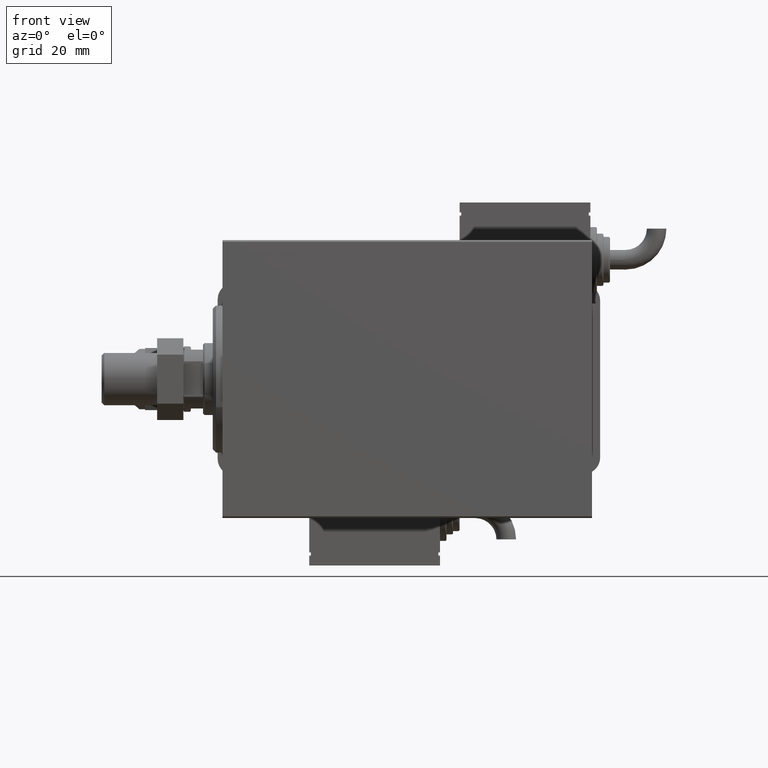
[diagram: clean part render]
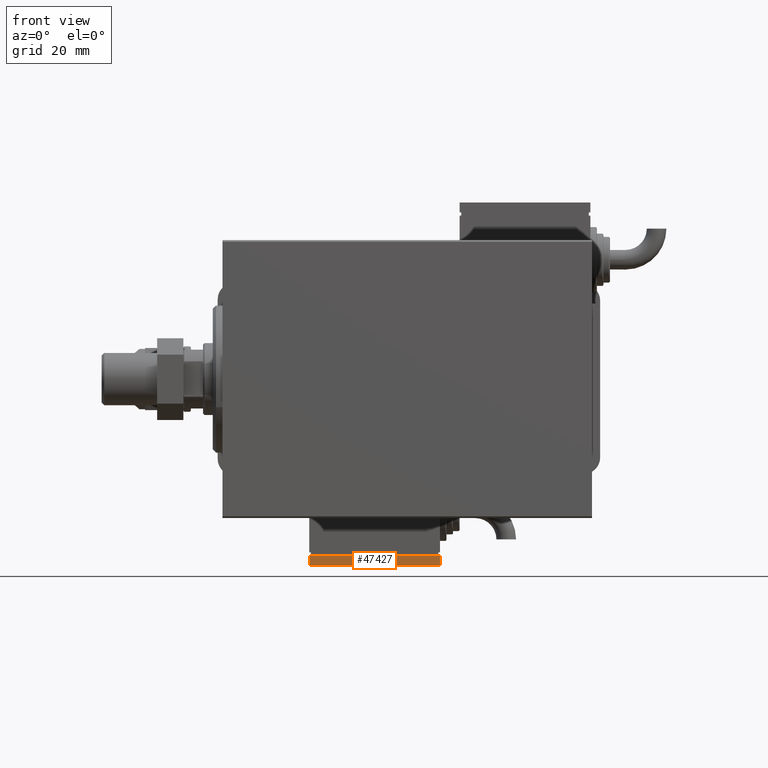
[diagram: same view with one face highlighted and labeled with its STEP entity id]
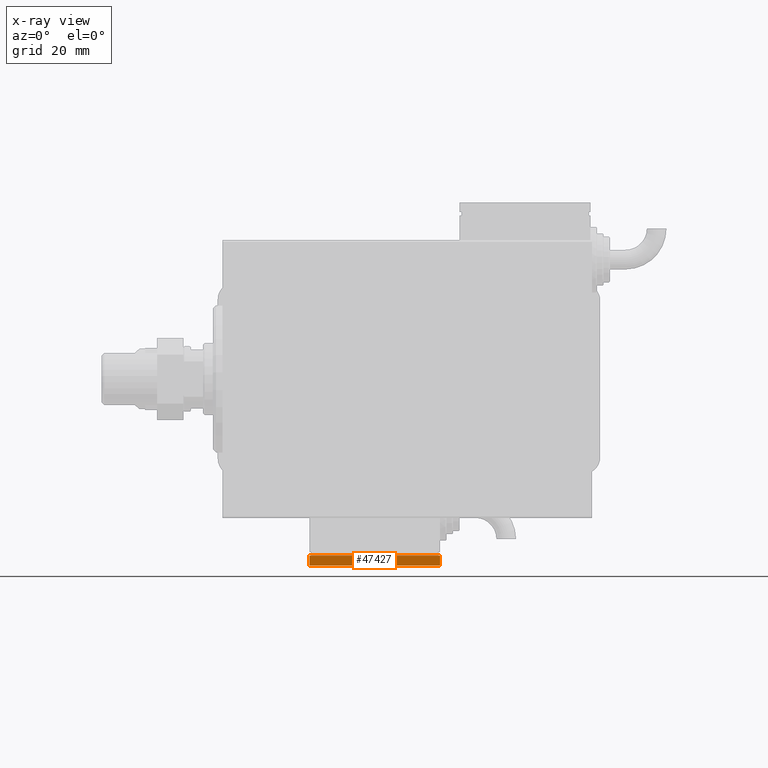
[diagram: x-ray of the same camera — body ghosted, the highlighted face saturated]
A machine part, front view. The second image highlights one B-rep face of the part: STEP entity #47427.
The next image is the same camera in x-ray: the body ghosted, the highlighted face saturated — about 0% of this face is hidden behind the body in this view.
In plain terms, the highlighted planar face has unit normal (-0, 1, -0).
Its self-contained STEP definition (entity closure, byte-faithful):
#4614 = ORIENTED_EDGE ( 'NONE', *, *, #49275, .F. ) ;
#5405 = CARTESIAN_POINT ( 'NONE',  ( 20.00000000000005329, -17.49999999999996092, -9.999999999999998224 ) ) ;
#5787 = LINE ( 'NONE', #29514, #21926 ) ;
#6054 = PLANE ( 'NONE',  #51559 ) ;
#6366 = DIRECTION ( 'NONE',  ( 1.000000000000000000, 0.000000000000000000, 0.000000000000000000 ) ) ;
#7429 = LINE ( 'NONE', #26610, #30114 ) ;
#8589 = VERTEX_POINT ( 'NONE', #24038 ) ;
#10489 = DIRECTION ( 'NONE',  ( 1.000000000000000000, 0.000000000000000000, 0.000000000000000000 ) ) ;
#12824 = EDGE_CURVE ( 'NONE', #26093, #8589, #5787, .T. ) ;
#14772 = LINE ( 'NONE', #51623, #42370 ) ;
#16103 = EDGE_CURVE ( 'NONE', #34365, #53744, #14772, .T. ) ;
#16866 = DIRECTION ( 'NONE',  ( -0.000000000000000000, 1.000000000000000000, -0.000000000000000000 ) ) ;
#20092 = DIRECTION ( 'NONE',  ( -0.000000000000000000, 0.000000000000000000, 1.000000000000000000 ) ) ;
#21926 = VECTOR ( 'NONE', #28650, 1000.000000000000000 ) ;
#23680 = DIRECTION ( 'NONE',  ( -0.000000000000000000, 1.000000000000000000, -0.000000000000000000 ) ) ;
#24038 = CARTESIAN_POINT ( 'NONE',  ( 20.00000000000005329, -17.49999999999996092, -9.999999999999998224 ) ) ;
#24091 = EDGE_CURVE ( 'NONE', #26093, #34365, #7429, .T. ) ;
#25227 = FACE_OUTER_BOUND ( 'NONE', #45332, .T. ) ;
#25847 = ORIENTED_EDGE ( 'NONE', *, *, #16103, .T. ) ;
#26093 = VERTEX_POINT ( 'NONE', #44427 ) ;
#26610 = CARTESIAN_POINT ( 'NONE',  ( -19.99999999999994316, -17.49999999999996092, -9.999999999999998224 ) ) ;
#28650 = DIRECTION ( 'NONE',  ( 1.000000000000000000, 0.000000000000000000, 0.000000000000000000 ) ) ;
#29091 = ORIENTED_EDGE ( 'NONE', *, *, #24091, .T. ) ;
#29494 = CARTESIAN_POINT ( 'NONE',  ( -19.99999999999994316, -17.49999999999996092, -9.999999999999998224 ) ) ;
#29514 = CARTESIAN_POINT ( 'NONE',  ( -19.99999999999994316, -17.49999999999996092, -9.999999999999998224 ) ) ;
#30114 = VECTOR ( 'NONE', #16866, 1000.000000000000000 ) ;
#30583 = CARTESIAN_POINT ( 'NONE',  ( 20.00000000000005329, -14.49999999999996092, -9.999999999999998224 ) ) ;
#33176 = VECTOR ( 'NONE', #23680, 1000.000000000000000 ) ;
#34365 = VERTEX_POINT ( 'NONE', #60169 ) ;
#42259 = LINE ( 'NONE', #5405, #33176 ) ;
#42370 = VECTOR ( 'NONE', #10489, 1000.000000000000000 ) ;
#44427 = CARTESIAN_POINT ( 'NONE',  ( -19.99999999999994316, -17.49999999999996092, -9.999999999999998224 ) ) ;
#45332 = EDGE_LOOP ( 'NONE', ( #25847, #4614, #45860, #29091 ) ) ;
#45860 = ORIENTED_EDGE ( 'NONE', *, *, #12824, .F. ) ;
#47427 = ADVANCED_FACE ( 'NONE', ( #25227 ), #6054, .F. ) ;
#49275 = EDGE_CURVE ( 'NONE', #8589, #53744, #42259, .T. ) ;
#51559 = AXIS2_PLACEMENT_3D ( 'NONE', #29494, #20092, #6366 ) ;
#51623 = CARTESIAN_POINT ( 'NONE',  ( -19.99999999999994316, -14.49999999999996092, -9.999999999999998224 ) ) ;
#53744 = VERTEX_POINT ( 'NONE', #30583 ) ;
#60169 = CARTESIAN_POINT ( 'NONE',  ( -19.99999999999994316, -14.49999999999996092, -9.999999999999998224 ) ) ;